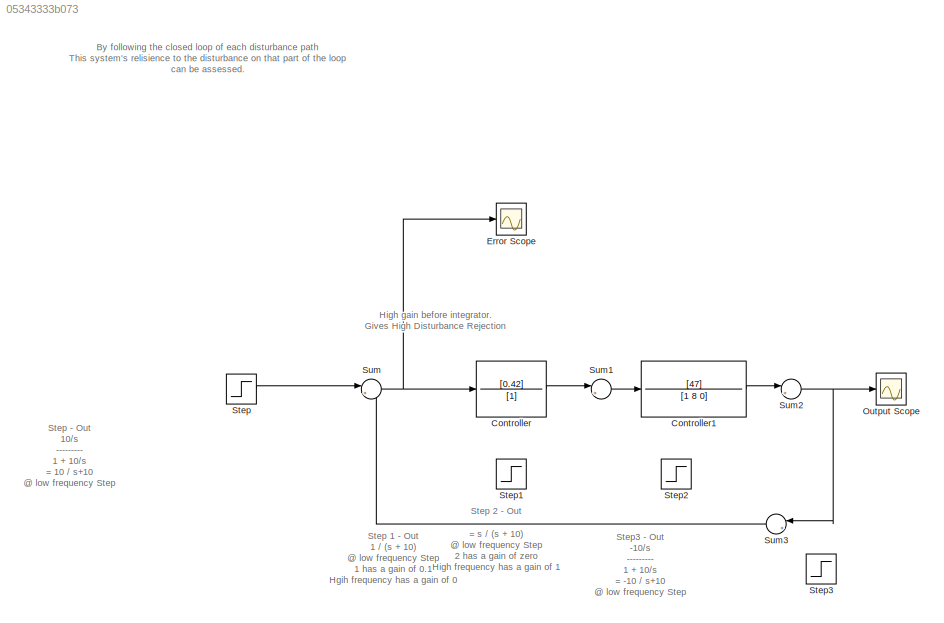
MODEL slx_05343333b073
KIND model
CONFIG AbsTol = auto
CONFIG EnableMultiTasking = off
CONFIG FixedStep = auto
CONFIG MaxStep = auto
CONFIG MinStep = auto
CONFIG RelTol = 1e-3
CONFIG SampleTimeConstraint = Unconstrained
CONFIG Solver = VariableStepAuto
CONFIG SolverName = VariableStepAuto
CONFIG StartTime = 0.0
CONFIG StopTime = 30
BLOCK [TransferFcn] Controller
  Denominator = [1]
  Numerator = [0.42]
BLOCK [TransferFcn] Controller1
  Denominator = [1 8 0]
  Numerator = [47]
BLOCK [Scope] Error Scope
  NumInputPorts = 1
  Ports = [1]
  ScopeSpecificationString = Simulink.scopes.TimeScopeBlockCfg('CurrentConfiguration', extmgr.ConfigurationSet(extmgr.Configuration('Core','General UI',true),extmgr.Configuration('Core','Source UI',true),extmgr.Configuration('Sources','WiredSimulink',true,'DataLoggingVariableName','ScopeData1'),extmgr.Configuration('Visuals','Time Domain',true,'SerializedDisplays',{struct('MinYLimReal','-1.24999','MaxYLimReal','1.25','YLabelR...<+1404ch>
BLOCK [Scope] Output Scope
  NumInputPorts = 1
  Ports = [1]
  ScopeSpecificationString = Simulink.scopes.TimeScopeBlockCfg('CurrentConfiguration', extmgr.ConfigurationSet(extmgr.Configuration('Core','General UI',true),extmgr.Configuration('Core','Source UI',true),extmgr.Configuration('Sources','WiredSimulink',true),extmgr.Configuration('Visuals','Time Domain',true,'SerializedDisplays',{struct('MinYLimReal','-0.25','MaxYLimReal','2.24999','YLabelReal','','MinYLimMag','0.00000','MaxYLim...<+1373ch>
BLOCK [Step] Step
  SampleTime = 0
  Time = 0.1
BLOCK [Step] Step1
  SampleTime = 0
  Time = 2
BLOCK [Step] Step2
  SampleTime = 0
  Time = 3
BLOCK [Step] Step3
  SampleTime = 0
  Time = 5
BLOCK [Sum] Sum
  IconShape = round
  InputSameDT = off
  Inputs = |+-
  OutDataTypeStr = Inherit: Inherit via internal rule
  Ports = [2, 1]
  SaturateOnIntegerOverflow = off
BLOCK [Sum] Sum1
  IconShape = round
  InputSameDT = off
  Inputs = |++
  OutDataTypeStr = Inherit: Inherit via internal rule
  Ports = [2, 1]
  SaturateOnIntegerOverflow = off
BLOCK [Sum] Sum2
  IconShape = round
  InputSameDT = off
  Inputs = |++
  OutDataTypeStr = Inherit: Inherit via internal rule
  Ports = [2, 1]
  SaturateOnIntegerOverflow = off
BLOCK [Sum] Sum3
  IconShape = round
  InputSameDT = off
  Inputs = |++
  OutDataTypeStr = Inherit: Inherit via internal rule
  Ports = [2, 1]
  SaturateOnIntegerOverflow = off
ANNOTATION (root): By following the closed loop of each disturbance path This system's relisience to the disturbance on that part of the loop can be assessed.
ANNOTATION (root): Step - Out 10/s --------- 1 + 10/s = 10 / s+10 @ low frequency Step has a gain of 1 High frequency has a gain of 0
ANNOTATION (root): Step 1 - Out 1 / (s + 10) @ low frequency Step 1 has a gain of 0.1 Hgih frequency has a gain of 0
ANNOTATION (root): Step 2 - Out = s / (s + 10) @ low frequency Step 2 has a gain of zero High frequency has a gain of 1
ANNOTATION (root): Step3 - Out -10/s --------- 1 + 10/s = -10 / s+10 @ low frequency Step 3 has a gain of -1 Hgih frequency has a gain of 0
ANNOTATION (root): High gain before integrator. Gives High Disturbance Rejection
LINE Controller1:1 -> Sum2:1
LINE Controller:1 -> Sum1:1
LINE Step:1 -> Sum:1
LINE Sum1:1 -> Controller1:1
NET Sum2:1 -> Output Scope:1, Sum3:1
LINE Sum3:1 -> Sum:2
NET Sum:1 -> Controller:1, Error Scope:1
note: NET lines group one-source signal fan-out (src -> all destinations, sorted); 1:1 wires keep LINE
